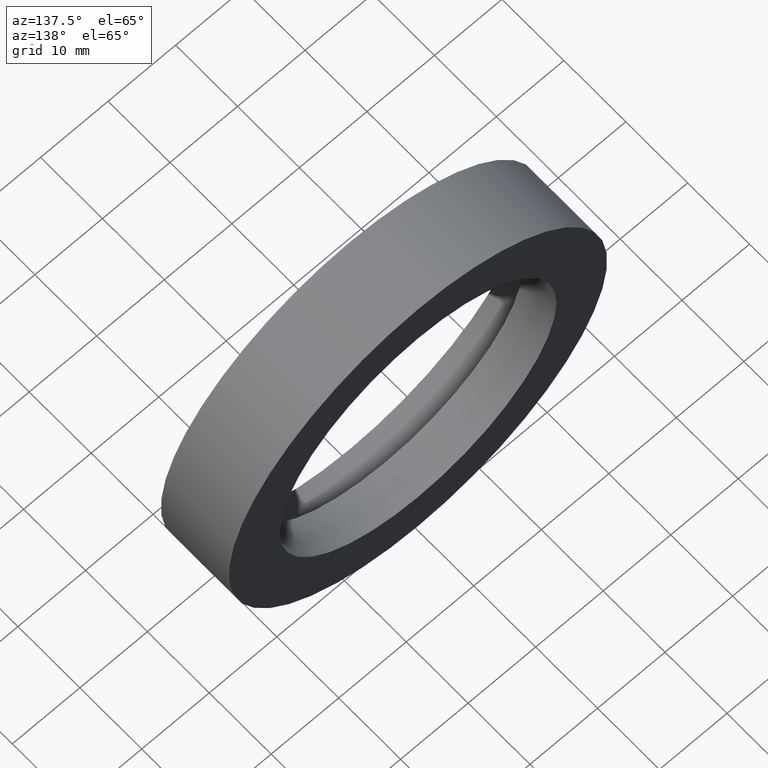
[diagram: clean part render]
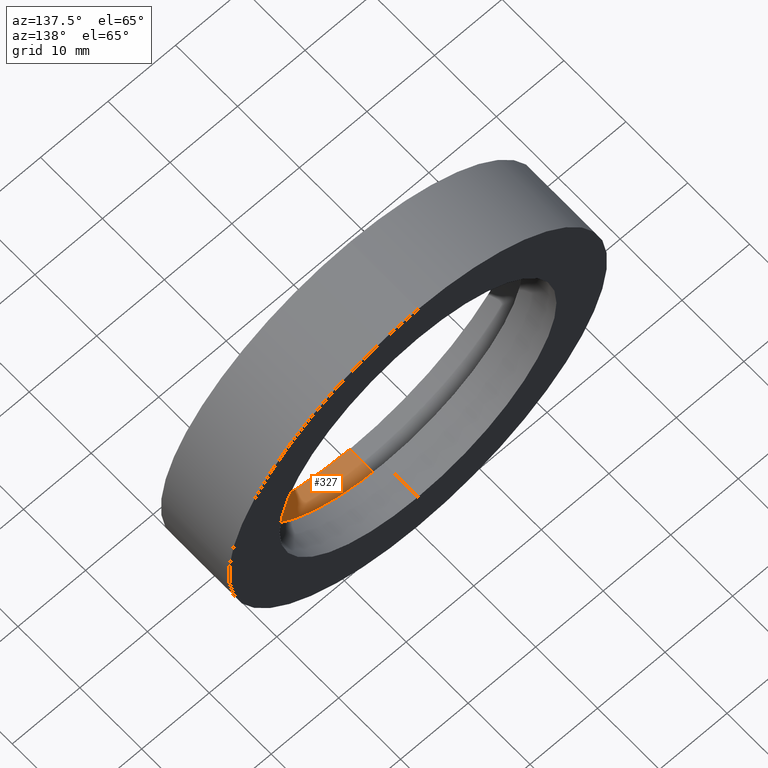
[diagram: same view with one face highlighted and labeled with its STEP entity id]
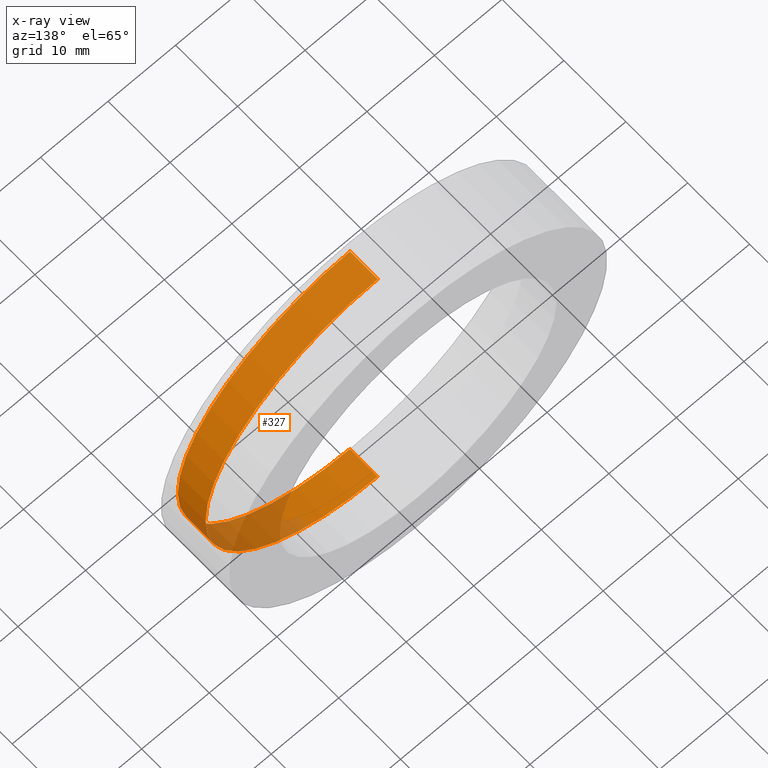
[diagram: x-ray of the same camera — body ghosted, the highlighted face saturated]
A machine part, auxiliary view. The second image highlights one B-rep face of the part: STEP entity #327.
The next image is the same camera in x-ray: the body ghosted, the highlighted face saturated — about 16% of this face is hidden behind the body in this view.
In plain terms, the highlighted cylindrical surface (partial cylindrical patch) has radius 25.5 mm, axis along (-0, 1, -0).
Its self-contained STEP definition (entity closure, byte-faithful):
#1 = VERTEX_POINT ( 'NONE', #298 ) ;
#6 = CARTESIAN_POINT ( 'NONE',  ( 0.0000000000000000000, 0.0000000000000000000, 25.50000000000000400 ) ) ;
#8 = EDGE_CURVE ( 'NONE', #245, #71, #25, .T. ) ;
#13 = DIRECTION ( 'NONE',  ( 0.0000000000000000000, 0.0000000000000000000, 1.000000000000000000 ) ) ;
#25 = CIRCLE ( 'NONE', #238, 25.50000000000000400 ) ;
#26 = VECTOR ( 'NONE', #60, 1000.000000000000000 ) ;
#42 = AXIS2_PLACEMENT_3D ( 'NONE', #317, #179, #276 ) ;
#44 = ORIENTED_EDGE ( 'NONE', *, *, #127, .T. ) ;
#45 = LINE ( 'NONE', #434, #140 ) ;
#60 = DIRECTION ( 'NONE',  ( -0.0000000000000000000, 1.000000000000000000, -0.0000000000000000000 ) ) ;
#65 = ORIENTED_EDGE ( 'NONE', *, *, #415, .F. ) ;
#71 = VERTEX_POINT ( 'NONE', #417 ) ;
#119 = EDGE_LOOP ( 'NONE', ( #65, #200, #239, #44 ) ) ;
#127 = EDGE_CURVE ( 'NONE', #243, #1, #346, .T. ) ;
#140 = VECTOR ( 'NONE', #432, 1000.000000000000000 ) ;
#150 = AXIS2_PLACEMENT_3D ( 'NONE', #413, #231, #13 ) ;
#179 = DIRECTION ( 'NONE',  ( -0.0000000000000000000, 1.000000000000000000, -0.0000000000000000000 ) ) ;
#200 = ORIENTED_EDGE ( 'NONE', *, *, #8, .F. ) ;
#224 = FACE_OUTER_BOUND ( 'NONE', #119, .T. ) ;
#231 = DIRECTION ( 'NONE',  ( -0.0000000000000000000, 1.000000000000000000, -0.0000000000000000000 ) ) ;
#238 = AXIS2_PLACEMENT_3D ( 'NONE', #269, #394, #423 ) ;
#239 = ORIENTED_EDGE ( 'NONE', *, *, #391, .T. ) ;
#243 = VERTEX_POINT ( 'NONE', #257 ) ;
#245 = VERTEX_POINT ( 'NONE', #6 ) ;
#249 = CYLINDRICAL_SURFACE ( 'NONE', #42, 25.50000000000000400 ) ;
#257 = CARTESIAN_POINT ( 'NONE',  ( 0.0000000000000000000, 4.499999999999997300, 25.50000000000000400 ) ) ;
#269 = CARTESIAN_POINT ( 'NONE',  ( 0.0000000000000000000, 0.0000000000000000000, 0.0000000000000000000 ) ) ;
#276 = DIRECTION ( 'NONE',  ( 0.0000000000000000000, 0.0000000000000000000, 1.000000000000000000 ) ) ;
#298 = CARTESIAN_POINT ( 'NONE',  ( 3.122849337825751400E-015, 4.499999999999997300, -25.50000000000000400 ) ) ;
#317 = CARTESIAN_POINT ( 'NONE',  ( 0.0000000000000000000, 60.02082041425541100, 0.0000000000000000000 ) ) ;
#327 = ADVANCED_FACE ( 'NONE', ( #224 ), #249, .F. ) ;
#342 = CARTESIAN_POINT ( 'NONE',  ( 3.122849337825751400E-015, 60.02082041425541100, -25.50000000000000400 ) ) ;
#346 = CIRCLE ( 'NONE', #150, 25.50000000000000400 ) ;
#383 = LINE ( 'NONE', #342, #26 ) ;
#391 = EDGE_CURVE ( 'NONE', #245, #243, #45, .T. ) ;
#394 = DIRECTION ( 'NONE',  ( -0.0000000000000000000, 1.000000000000000000, -0.0000000000000000000 ) ) ;
#413 = CARTESIAN_POINT ( 'NONE',  ( 0.0000000000000000000, 4.499999999999997300, 0.0000000000000000000 ) ) ;
#415 = EDGE_CURVE ( 'NONE', #71, #1, #383, .T. ) ;
#417 = CARTESIAN_POINT ( 'NONE',  ( 3.122849337825751400E-015, 0.0000000000000000000, -25.50000000000000400 ) ) ;
#423 = DIRECTION ( 'NONE',  ( 0.0000000000000000000, 0.0000000000000000000, 1.000000000000000000 ) ) ;
#432 = DIRECTION ( 'NONE',  ( -0.0000000000000000000, 1.000000000000000000, -0.0000000000000000000 ) ) ;
#434 = CARTESIAN_POINT ( 'NONE',  ( 0.0000000000000000000, 60.02082041425541100, 25.50000000000000400 ) ) ;